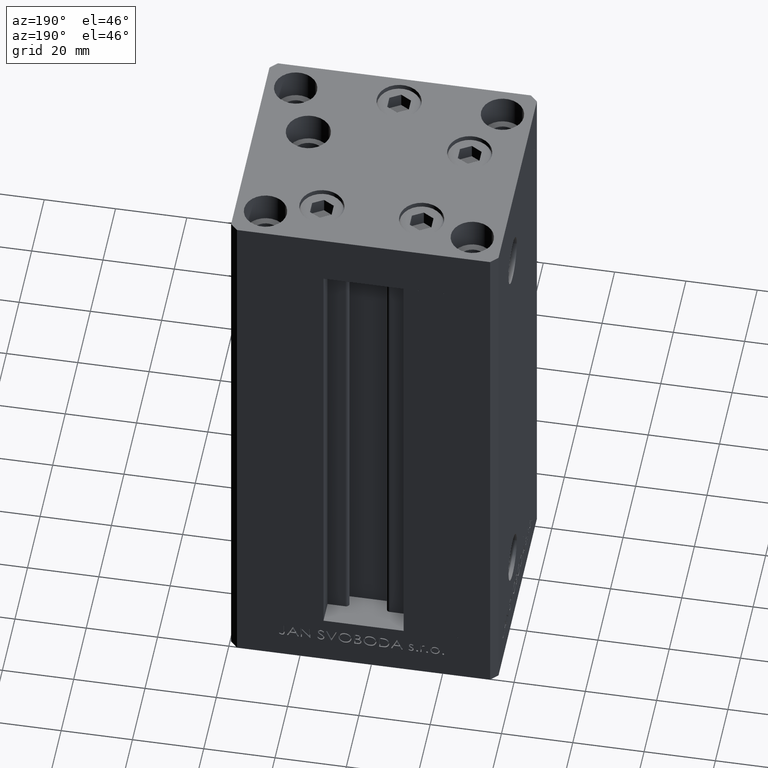
[diagram: clean part render]
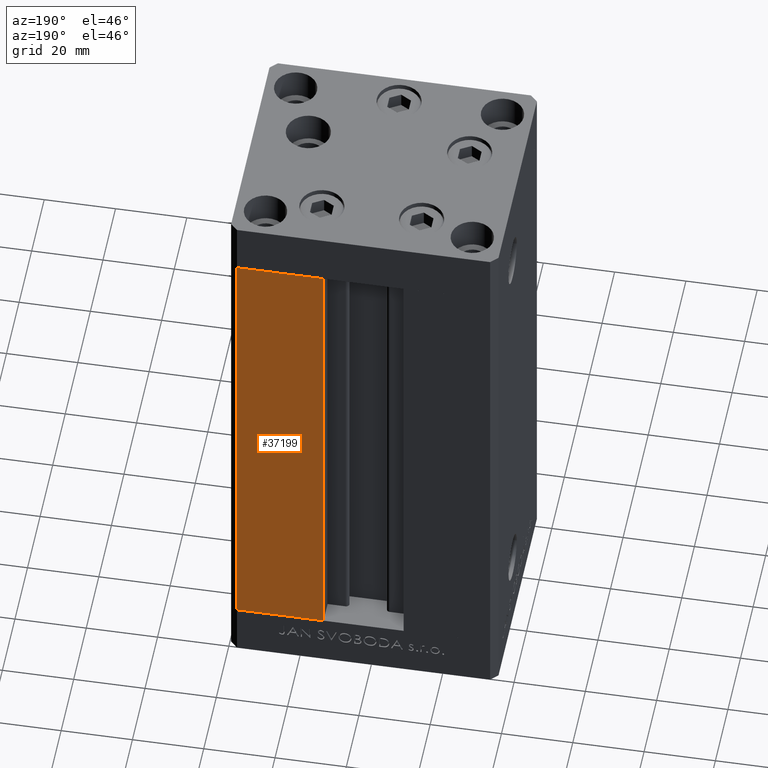
[diagram: same view with one face highlighted and labeled with its STEP entity id]
A machine part, auxiliary view. The second image highlights one B-rep face of the part: STEP entity #37199.
In plain terms, the highlighted planar face has unit normal (0, -1, 0).
Its self-contained STEP definition (entity closure, byte-faithful):
#2041 = CARTESIAN_POINT ( 'NONE',  ( 11.25000000000000178, 32.49999999999999289, 0.000000000000000000 ) ) ;
#2475 = EDGE_CURVE ( 'NONE', #42851, #42139, #7103, .T. ) ;
#2669 = CARTESIAN_POINT ( 'NONE',  ( -11.25000000000000178, 32.49999999999999289, 136.0000000000000000 ) ) ;
#3762 = ORIENTED_EDGE ( 'NONE', *, *, #32868, .T. ) ;
#3838 = DIRECTION ( 'NONE',  ( -0.000000000000000000, -0.000000000000000000, -1.000000000000000000 ) ) ;
#6284 = VERTEX_POINT ( 'NONE', #48332 ) ;
#7084 = ORIENTED_EDGE ( 'NONE', *, *, #14566, .T. ) ;
#7103 = LINE ( 'NONE', #49314, #42242 ) ;
#13671 = EDGE_CURVE ( 'NONE', #6284, #42851, #37075, .T. ) ;
#14302 = LINE ( 'NONE', #21828, #26726 ) ;
#14566 = EDGE_CURVE ( 'NONE', #42139, #22380, #34587, .T. ) ;
#17983 = DIRECTION ( 'NONE',  ( 0.000000000000000000, -1.000000000000000000, 0.000000000000000000 ) ) ;
#21635 = ORIENTED_EDGE ( 'NONE', *, *, #13671, .T. ) ;
#21828 = CARTESIAN_POINT ( 'NONE',  ( 11.25000000000000178, 32.49999999999999289, 0.000000000000000000 ) ) ;
#22063 = DIRECTION ( 'NONE',  ( -0.000000000000000000, -0.000000000000000000, 1.000000000000000000 ) ) ;
#22380 = VERTEX_POINT ( 'NONE', #2041 ) ;
#23277 = DIRECTION ( 'NONE',  ( -1.000000000000000000, 0.000000000000000000, 0.000000000000000000 ) ) ;
#24013 = CARTESIAN_POINT ( 'NONE',  ( -11.25000000000000178, 32.49999999999999289, 0.000000000000000000 ) ) ;
#26726 = VECTOR ( 'NONE', #22063, 1000.000000000000000 ) ;
#27549 = AXIS2_PLACEMENT_3D ( 'NONE', #2669, #17983, #29295 ) ;
#27804 = VECTOR ( 'NONE', #23277, 1000.000000000000000 ) ;
#29295 = DIRECTION ( 'NONE',  ( 0.000000000000000000, -0.000000000000000000, -1.000000000000000000 ) ) ;
#29776 = DIRECTION ( 'NONE',  ( 1.000000000000000000, 0.000000000000000000, 0.000000000000000000 ) ) ;
#32868 = EDGE_CURVE ( 'NONE', #22380, #6284, #14302, .T. ) ;
#34065 = FACE_OUTER_BOUND ( 'NONE', #45542, .T. ) ;
#34568 = CARTESIAN_POINT ( 'NONE',  ( 35.50000000000000000, 32.49999999999999289, 136.0000000000000000 ) ) ;
#34587 = LINE ( 'NONE', #24013, #27804 ) ;
#37075 = LINE ( 'NONE', #44622, #39853 ) ;
#37199 = ADVANCED_FACE ( 'NONE', ( #34065 ), #37852, .F. ) ;
#37852 = PLANE ( 'NONE',  #27549 ) ;
#39853 = VECTOR ( 'NONE', #29776, 1000.000000000000000 ) ;
#40934 = ORIENTED_EDGE ( 'NONE', *, *, #2475, .T. ) ;
#42139 = VERTEX_POINT ( 'NONE', #49574 ) ;
#42242 = VECTOR ( 'NONE', #3838, 1000.000000000000000 ) ;
#42851 = VERTEX_POINT ( 'NONE', #34568 ) ;
#44622 = CARTESIAN_POINT ( 'NONE',  ( -11.25000000000000178, 32.49999999999999289, 136.0000000000000000 ) ) ;
#45542 = EDGE_LOOP ( 'NONE', ( #7084, #3762, #21635, #40934 ) ) ;
#48332 = CARTESIAN_POINT ( 'NONE',  ( 11.24999999999999467, 32.49999999999999289, 136.0000000000000000 ) ) ;
#49314 = CARTESIAN_POINT ( 'NONE',  ( 35.50000000000000000, 32.49999999999999289, 136.0000000000000000 ) ) ;
#49574 = CARTESIAN_POINT ( 'NONE',  ( 35.50000000000000000, 32.49999999999999289, 0.000000000000000000 ) ) ;